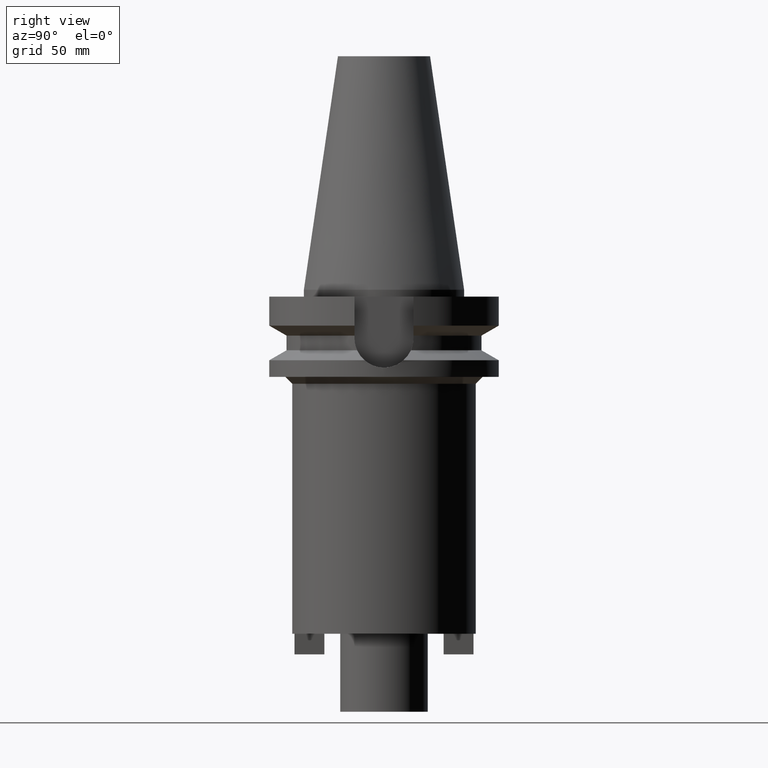
[diagram: clean part render]
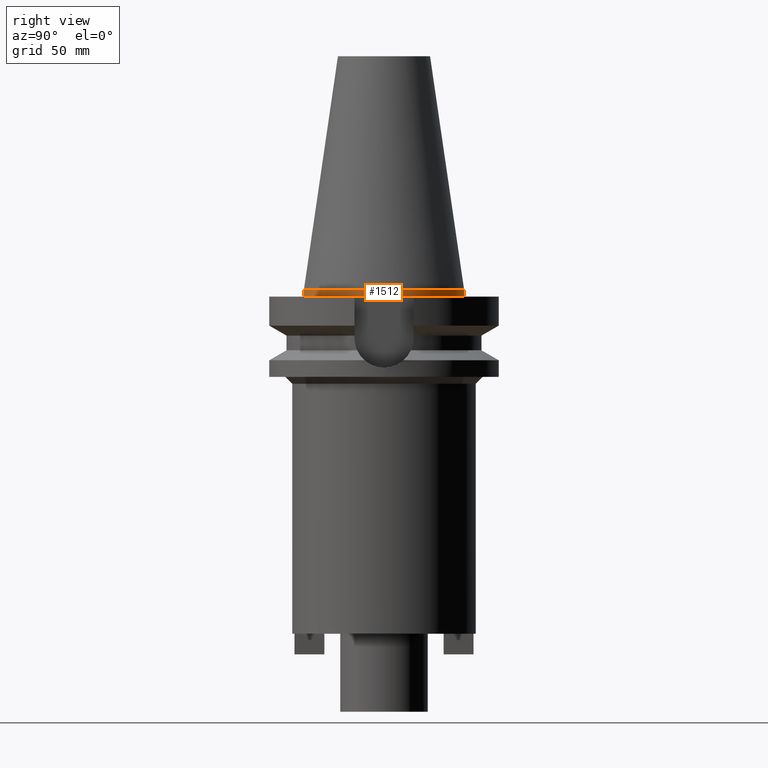
[diagram: same view with one face highlighted and labeled with its STEP entity id]
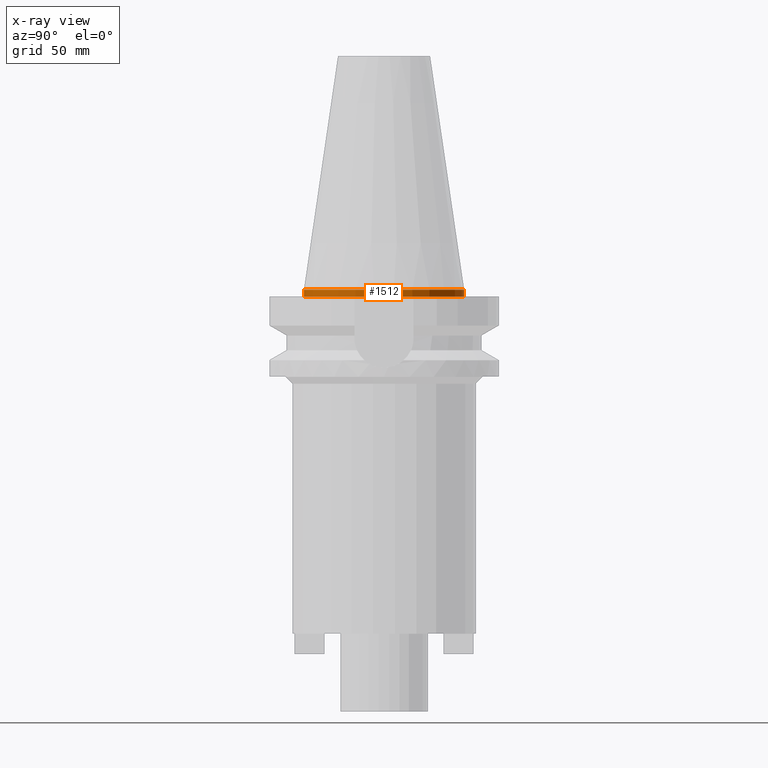
[diagram: x-ray of the same camera — body ghosted, the highlighted face saturated]
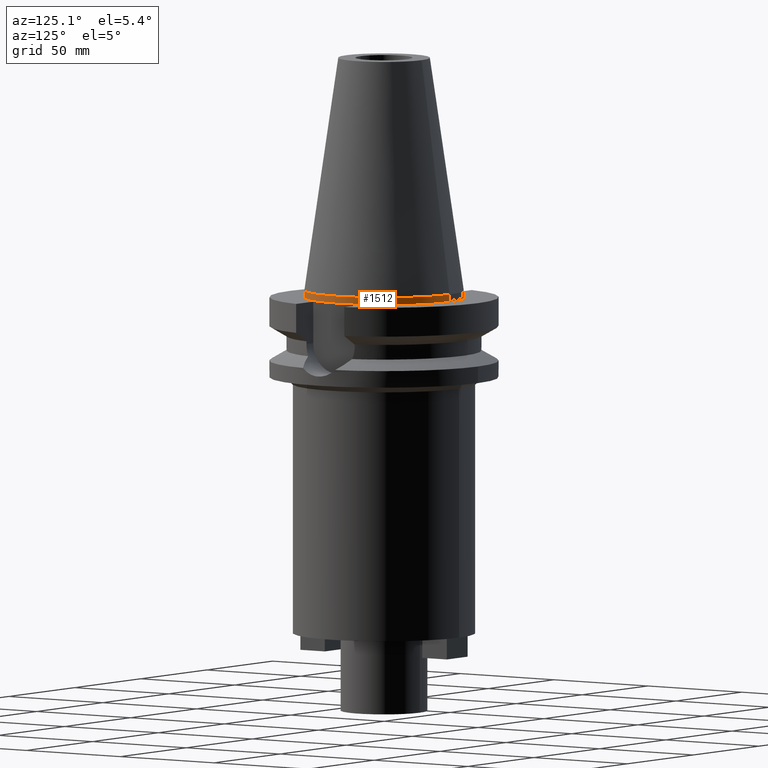
[diagram: same view with one face highlighted and labeled with its STEP entity id]
A machine part, right view. The second image highlights one B-rep face of the part: STEP entity #1512.
The next image is the same camera in x-ray: the body ghosted, the highlighted face saturated — about 0% of this face is hidden behind the body in this view.
A second angle (auxiliary view) of the same face is appended — the face is thin or edge-on in the first view.
In plain terms, the highlighted cylindrical surface (partial cylindrical patch) has radius 34.925 mm, axis along (0, 0, -1).
Its self-contained STEP definition (entity closure, byte-faithful):
#133=CARTESIAN_POINT('',(0.E0,1.847992019913E-14,3.979039320257E-13));
#134=DIRECTION('',(0.E0,0.E0,-1.E0));
#135=DIRECTION('',(0.E0,1.E0,0.E0));
#136=AXIS2_PLACEMENT_3D('',#133,#134,#135);
#156=DIRECTION('',(0.E0,2.107943449421E-13,-1.E0));
#157=VECTOR('',#156,3.E0);
#158=CARTESIAN_POINT('',(0.E0,-3.4925E1,4.689582056017E-13));
#159=LINE('',#158,#157);
#163=DIRECTION('',(0.E0,-2.131628207280E-13,-1.E0));
#164=VECTOR('',#163,3.E0);
#165=CARTESIAN_POINT('',(0.E0,3.4925E1,4.689582056017E-13));
#166=LINE('',#165,#164);
#238=CARTESIAN_POINT('',(0.E0,2.646339268278E-14,-3.E0));
#239=DIRECTION('',(0.E0,0.E0,1.E0));
#240=DIRECTION('',(0.E0,-1.E0,0.E0));
#241=AXIS2_PLACEMENT_3D('',#238,#239,#240);
#1188=CARTESIAN_POINT('',(0.E0,3.4925E1,4.689582056017E-13));
#1189=VERTEX_POINT('',#1188);
#1190=CARTESIAN_POINT('',(0.E0,-3.4925E1,3.979039320257E-13));
#1191=VERTEX_POINT('',#1190);
#1192=CARTESIAN_POINT('',(0.E0,3.4925E1,-3.E0));
#1193=VERTEX_POINT('',#1192);
#1194=CARTESIAN_POINT('',(0.E0,-3.4925E1,-3.E0));
#1195=VERTEX_POINT('',#1194);
#1500=CARTESIAN_POINT('',(0.E0,2.646339268278E-14,1.1609E2));
#1501=DIRECTION('',(0.E0,0.E0,-1.E0));
#1502=DIRECTION('',(0.E0,-1.E0,0.E0));
#1503=AXIS2_PLACEMENT_3D('',#1500,#1501,#1502);
#1504=CYLINDRICAL_SURFACE('',#1503,3.4925E1);
#1505=ORIENTED_EDGE('',*,*,#1490,.T.);
#1507=ORIENTED_EDGE('',*,*,#1506,.F.);
#1508=ORIENTED_EDGE('',*,*,#1493,.F.);
#1509=ORIENTED_EDGE('',*,*,#1464,.F.);
#1510=EDGE_LOOP('',(#1505,#1507,#1508,#1509));
#1511=FACE_OUTER_BOUND('',#1510,.F.);
#137=CIRCLE('',#136,3.4925E1);
#242=CIRCLE('',#241,3.4925E1);
#1464=EDGE_CURVE('',#1189,#1191,#137,.T.);
#1490=EDGE_CURVE('',#1189,#1193,#166,.T.);
#1493=EDGE_CURVE('',#1191,#1195,#159,.T.);
#1506=EDGE_CURVE('',#1195,#1193,#242,.T.);
#1512=ADVANCED_FACE('',(#1511),#1504,.T.);